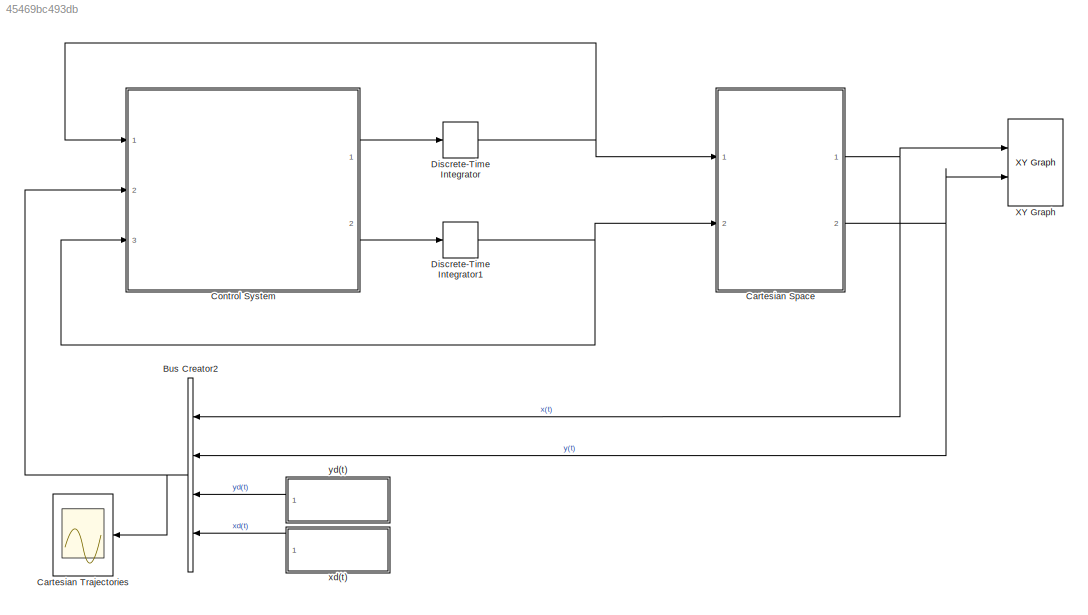
MODEL slx_45469bc493db
KIND model
CONFIG AbsTol = auto
CONFIG EnableMultiTasking = off
CONFIG FixedStep = 0.01
CONFIG MaxStep = auto
CONFIG MinStep = auto
CONFIG RelTol = 0.00001
CONFIG SampleTimeConstraint = Unconstrained
CONFIG Solver = FixedStepAuto
CONFIG SolverName = FixedStepAuto
CONFIG StartTime = 0.0
CONFIG StopTime = 10
WORKSPACE source: MAT-file member
WORKSPACE Kp_1 = 10000
WORKSPACE Kp_2 = 10000
WORKSPACE Kv_1 = 200
BLOCK [BusCreator] Bus Creator2
  DisplayOption = bar
  InheritFromInputs = on
  Inputs = 4
  Ports = [4, 1]
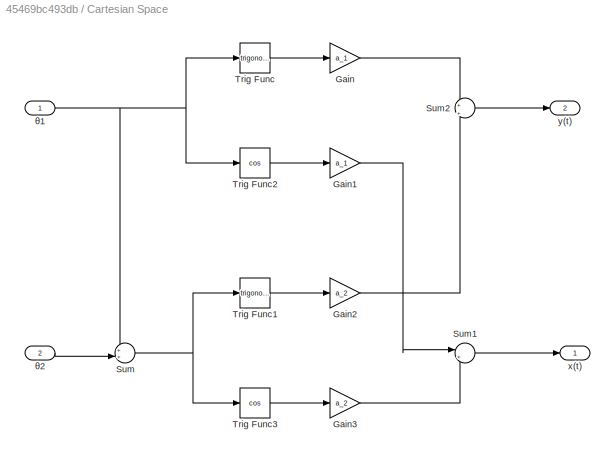
BLOCK [SubSystem] Cartesian Space 
  Ports = [2, 2]
  RequestExecContextInheritance = off
  TreatAsAtomicUnit = on
  Variant = off
BLOCK [Gain] Cartesian Space /Gain
  Gain = a_1
  OutDataTypeStr = Inherit: Inherit via internal rule
  ParamDataTypeStr = Inherit: Inherit via internal rule
  SaturateOnIntegerOverflow = off
BLOCK [Gain] Cartesian Space /Gain1
  Gain = a_1
  OutDataTypeStr = Inherit: Inherit via internal rule
  ParamDataTypeStr = Inherit: Inherit via internal rule
  SaturateOnIntegerOverflow = off
BLOCK [Gain] Cartesian Space /Gain2
  Gain = a_2
  OutDataTypeStr = Inherit: Inherit via internal rule
  ParamDataTypeStr = Inherit: Inherit via internal rule
  SaturateOnIntegerOverflow = off
BLOCK [Gain] Cartesian Space /Gain3
  Gain = a_2
  OutDataTypeStr = Inherit: Inherit via internal rule
  ParamDataTypeStr = Inherit: Inherit via internal rule
  SaturateOnIntegerOverflow = off
BLOCK [Sum] Cartesian Space /Sum
  IconShape = round
  InputSameDT = off
  Inputs = ++|
  OutDataTypeStr = Inherit: Inherit via internal rule
  Ports = [2, 1]
  SaturateOnIntegerOverflow = off
BLOCK [Sum] Cartesian Space /Sum1
  IconShape = round
  InputSameDT = off
  Inputs = |++
  OutDataTypeStr = Inherit: Inherit via internal rule
  Ports = [2, 1]
  SaturateOnIntegerOverflow = off
BLOCK [Sum] Cartesian Space /Sum2
  IconShape = round
  InputSameDT = off
  Inputs = +|+
  OutDataTypeStr = Inherit: Inherit via internal rule
  Ports = [2, 1]
  SaturateOnIntegerOverflow = off
BLOCK [Trigonometry] Cartesian Space /Trig Func
  Ports = [1, 1]
BLOCK [Trigonometry] Cartesian Space /Trig Func1
  Ports = [1, 1]
BLOCK [Trigonometry] Cartesian Space /Trig Func2
  Operator = cos
  Ports = [1, 1]
BLOCK [Trigonometry] Cartesian Space /Trig Func3
  Operator = cos
  Ports = [1, 1]
BLOCK [Outport] Cartesian Space /x(t)
  IconDisplay = Port number
BLOCK [Outport] Cartesian Space /y(t)
  IconDisplay = Port number
  Port = 2
BLOCK [Inport] Cartesian Space /θ1
  IconDisplay = Port number
BLOCK [Inport] Cartesian Space /θ2
  IconDisplay = Port number
  Port = 2
BLOCK [Scope] Cartesian Trajectories
  NumInputPorts = 1
  Ports = [1]
  ScopeSpecificationString = Simulink.scopes.TimeScopeBlockCfg('CurrentConfiguration', extmgr.ConfigurationSet(extmgr.Configuration('Core','General UI',true),extmgr.Configuration('Core','Source UI',true),extmgr.Configuration('Sources','WiredSimulink',true,'DataLoggingVariableName','ScopeData1'),extmgr.Configuration('Visuals','Time Domain',true,'SerializedDisplays',{struct('MinYLimReal','-0.25','MaxYLimReal','2.25','YLabelReal...<+1366ch>
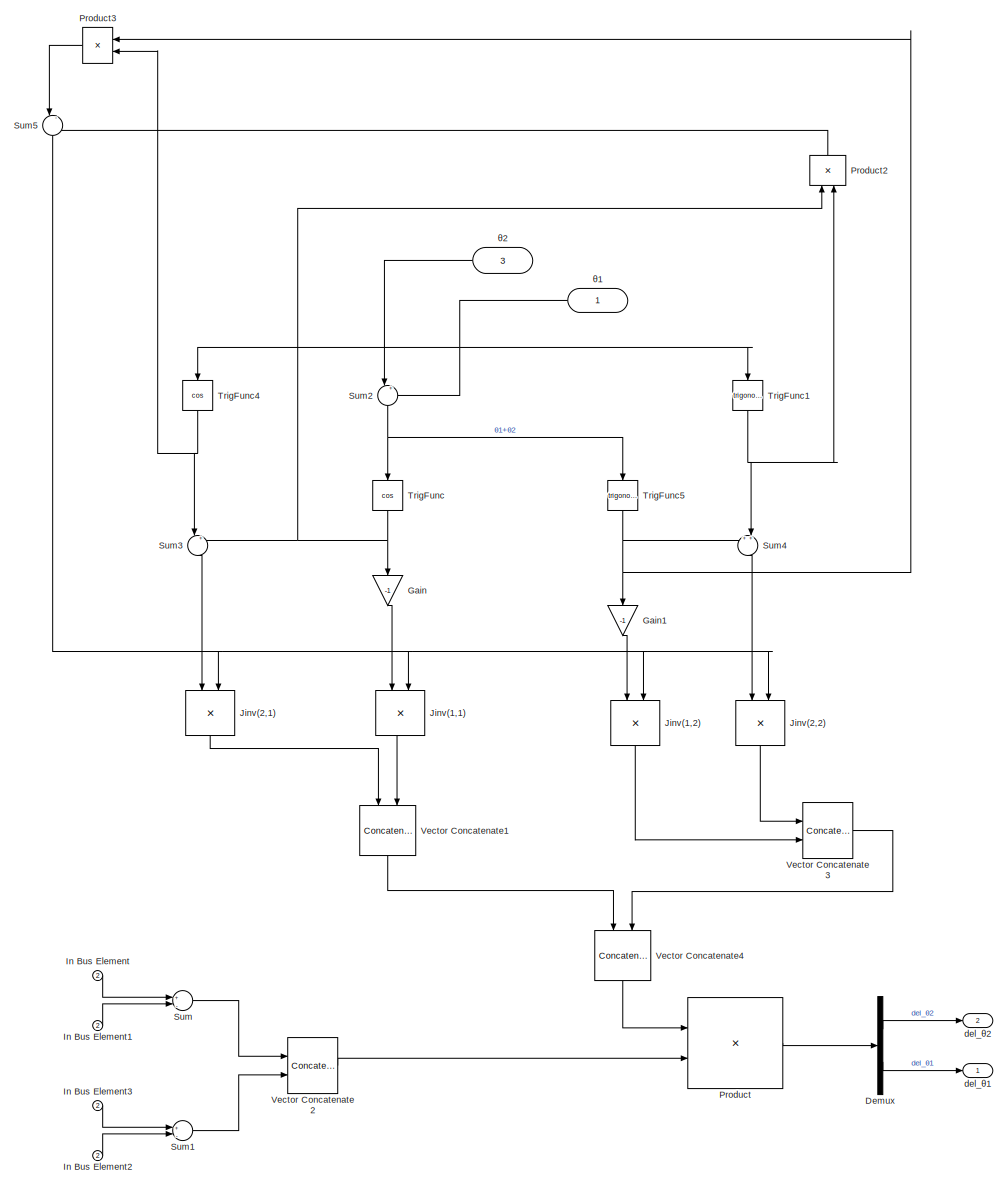
[diagram: Control System - part 1/1, most of the canvas]
BLOCK [SubSystem] Control System
  Ports = [3, 2]
  RequestExecContextInheritance = off
  TreatAsAtomicUnit = on
  Variant = off
BLOCK [Demux] Control System/Demux
  DisplayOption = bar
  Outputs = 2
  Ports = [1, 2]
BLOCK [Gain] Control System/Gain
  Gain = -1
  OutDataTypeStr = Inherit: Inherit via internal rule
  ParamDataTypeStr = Inherit: Inherit via internal rule
  SaturateOnIntegerOverflow = off
BLOCK [Gain] Control System/Gain1
  Gain = -1
  OutDataTypeStr = Inherit: Inherit via internal rule
  ParamDataTypeStr = Inherit: Inherit via internal rule
  SaturateOnIntegerOverflow = off
BLOCK [Inport] Control System/In Bus Element
  IconDisplay = Port number
  Port = 2
BLOCK [Inport] Control System/In Bus Element1
  IconDisplay = Port number
  Port = 2
BLOCK [Inport] Control System/In Bus Element2
  IconDisplay = Port number
  Port = 2
BLOCK [Inport] Control System/In Bus Element3
  IconDisplay = Port number
  Port = 2
BLOCK [Product] Control System/Jinv(1,1)
  InputSameDT = off
  Inputs = */
  OutDataTypeStr = Inherit: Inherit via internal rule
  Ports = [2, 1]
  RndMeth = Floor
  SaturateOnIntegerOverflow = off
BLOCK [Product] Control System/Jinv(1,2)
  InputSameDT = off
  Inputs = */
  OutDataTypeStr = Inherit: Inherit via internal rule
  Ports = [2, 1]
  RndMeth = Floor
  SaturateOnIntegerOverflow = off
BLOCK [Product] Control System/Jinv(2,1)
  InputSameDT = off
  Inputs = */
  OutDataTypeStr = Inherit: Inherit via internal rule
  Ports = [2, 1]
  RndMeth = Floor
  SaturateOnIntegerOverflow = off
BLOCK [Product] Control System/Jinv(2,2)
  InputSameDT = off
  Inputs = */
  OutDataTypeStr = Inherit: Inherit via internal rule
  Ports = [2, 1]
  RndMeth = Floor
  SaturateOnIntegerOverflow = off
BLOCK [Product] Control System/Product
  InputSameDT = off
  Multiplication = Matrix(*)
  OutDataTypeStr = Inherit: Inherit via internal rule
  Ports = [2, 1]
  RndMeth = Floor
  SaturateOnIntegerOverflow = off
BLOCK [Product] Control System/Product2
  InputSameDT = off
  OutDataTypeStr = Inherit: Inherit via internal rule
  Ports = [2, 1]
  RndMeth = Floor
  SaturateOnIntegerOverflow = off
BLOCK [Product] Control System/Product3
  InputSameDT = off
  OutDataTypeStr = Inherit: Inherit via internal rule
  Ports = [2, 1]
  RndMeth = Floor
  SaturateOnIntegerOverflow = off
BLOCK [Sum] Control System/Sum
  IconShape = round
  InputSameDT = off
  Inputs = +|-
  OutDataTypeStr = Inherit: Inherit via internal rule
  Ports = [2, 1]
  SaturateOnIntegerOverflow = off
BLOCK [Sum] Control System/Sum1
  IconShape = round
  InputSameDT = off
  Inputs = +|-
  OutDataTypeStr = Inherit: Inherit via internal rule
  Ports = [2, 1]
  SaturateOnIntegerOverflow = off
BLOCK [Sum] Control System/Sum2
  IconShape = round
  InputSameDT = off
  Inputs = |++
  OutDataTypeStr = Inherit: Inherit via internal rule
  Ports = [2, 1]
  SaturateOnIntegerOverflow = off
BLOCK [Sum] Control System/Sum3
  IconShape = round
  InputSameDT = off
  Inputs = |++
  OutDataTypeStr = Inherit: Inherit via internal rule
  Ports = [2, 1]
  SaturateOnIntegerOverflow = off
BLOCK [Sum] Control System/Sum4
  IconShape = round
  InputSameDT = off
  Inputs = ++|
  OutDataTypeStr = Inherit: Inherit via internal rule
  Ports = [2, 1]
  SaturateOnIntegerOverflow = off
BLOCK [Sum] Control System/Sum5
  IconShape = round
  InputSameDT = off
  Inputs = |-+
  OutDataTypeStr = Inherit: Inherit via internal rule
  Ports = [2, 1]
  SaturateOnIntegerOverflow = off
BLOCK [Trigonometry] Control System/TrigFunc
  Operator = cos
  Ports = [1, 1]
BLOCK [Trigonometry] Control System/TrigFunc1
  Ports = [1, 1]
BLOCK [Trigonometry] Control System/TrigFunc4
  Operator = cos
  Ports = [1, 1]
BLOCK [Trigonometry] Control System/TrigFunc5
  Ports = [1, 1]
BLOCK [Concatenate] Control System/Vector Concatenate1
  Mode = Multidimensional array
  Ports = [2, 1]
BLOCK [Concatenate] Control System/Vector Concatenate2
  Mode = Multidimensional array
  Ports = [2, 1]
BLOCK [Concatenate] Control System/Vector Concatenate3
  Mode = Multidimensional array
  Ports = [2, 1]
BLOCK [Concatenate] Control System/Vector Concatenate4
  ConcatenateDimension = 2
  Mode = Multidimensional array
  Ports = [2, 1]
BLOCK [Outport] Control System/del_θ1
  IconDisplay = Port number
BLOCK [Outport] Control System/del_θ2
  IconDisplay = Port number
  Port = 2
BLOCK [Inport] Control System/θ1
  IconDisplay = Port number
BLOCK [Inport] Control System/θ2
  IconDisplay = Port number
  Port = 3
BLOCK [DiscreteIntegrator] Discrete-Time Integrator
  ICPrevOutput = DiscIntNeverNeededParam
  ICPrevScaledInput = DiscIntNeverNeededParam
  InitialConditionSetting = State (most efficient)
  Ports = [1, 1]
  SampleTime = -1
  gainval = 1
BLOCK [DiscreteIntegrator] Discrete-Time Integrator1
  ICPrevOutput = DiscIntNeverNeededParam
  ICPrevScaledInput = DiscIntNeverNeededParam
  InitialConditionSetting = State (most efficient)
  Ports = [1, 1]
  SampleTime = -1
  gainval = 1
BLOCK [Reference] XY Graph  REF=simulink/Sinks/XY Graph
  Ports = [2]
  SourceBlock = simulink/Sinks/XY Graph
  SourceProductBaseCode = SL
  SourceProductName = Simulink
  SourceType = XY scope.
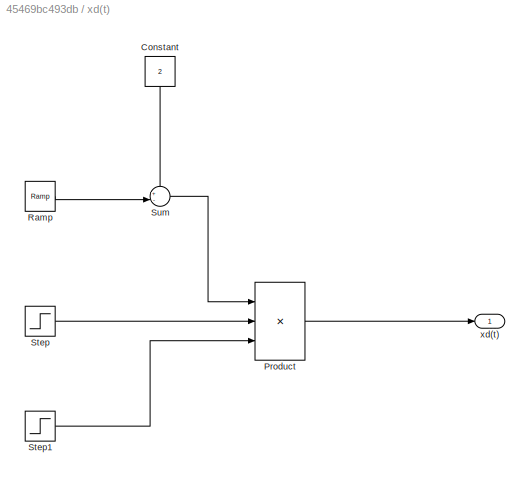
BLOCK [SubSystem] xd(t)
  Ports = [0, 1]
  RequestExecContextInheritance = off
  TreatAsAtomicUnit = on
  Variant = off
BLOCK [Constant] xd(t)/Constant
  Value = 2
BLOCK [Product] xd(t)/Product
  InputSameDT = off
  Inputs = 3
  OutDataTypeStr = Inherit: Inherit via internal rule
  Ports = [3, 1]
  RndMeth = Floor
  SaturateOnIntegerOverflow = off
BLOCK [Reference] xd(t)/Ramp  REF=simulink/Sources/Ramp
  Ports = [0, 1]
  SourceBlock = simulink/Sources/Ramp
  SourceProductBaseCode = SL
  SourceProductName = Simulink
  SourceType = Ramp
BLOCK [Step] xd(t)/Step
  SampleTime = 0
  Time = 0
BLOCK [Step] xd(t)/Step1
  After = 0
  Before = 1
  SampleTime = 0
  Time = 2
BLOCK [Sum] xd(t)/Sum
  IconShape = round
  InputSameDT = off
  Inputs = +-|
  OutDataTypeStr = Inherit: Inherit via internal rule
  Ports = [2, 1]
  SaturateOnIntegerOverflow = off
BLOCK [Outport] xd(t)/xd(t)
  IconDisplay = Port number
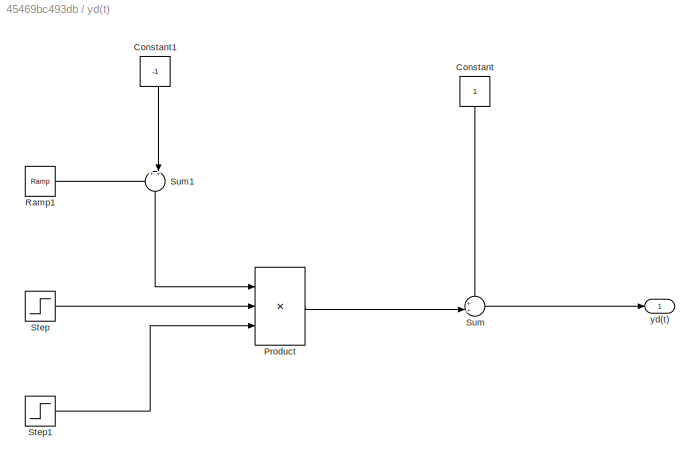
BLOCK [SubSystem] yd(t)
  Ports = [0, 1]
  RequestExecContextInheritance = off
  TreatAsAtomicUnit = on
  Variant = off
BLOCK [Constant] yd(t)/Constant
BLOCK [Constant] yd(t)/Constant1
  Value = -1
BLOCK [Product] yd(t)/Product
  InputSameDT = off
  Inputs = 3
  OutDataTypeStr = Inherit: Inherit via internal rule
  Ports = [3, 1]
  RndMeth = Floor
  SaturateOnIntegerOverflow = off
BLOCK [Reference] yd(t)/Ramp1  REF=simulink/Sources/Ramp
  Ports = [0, 1]
  SourceBlock = simulink/Sources/Ramp
  SourceProductBaseCode = SL
  SourceProductName = Simulink
  SourceType = Ramp
BLOCK [Step] yd(t)/Step
  SampleTime = 0
  Time = 0
BLOCK [Step] yd(t)/Step1
  After = 0
  Before = 1
  SampleTime = 0
  Time = 2
BLOCK [Sum] yd(t)/Sum
  IconShape = round
  InputSameDT = off
  Inputs = ++|
  OutDataTypeStr = Inherit: Inherit via internal rule
  Ports = [2, 1]
  SaturateOnIntegerOverflow = off
BLOCK [Sum] yd(t)/Sum1
  IconShape = round
  InputSameDT = off
  Inputs = ++|
  OutDataTypeStr = Inherit: Inherit via internal rule
  Ports = [2, 1]
  SaturateOnIntegerOverflow = off
BLOCK [Outport] yd(t)/yd(t)
  IconDisplay = Port number
NET Bus Creator2:1 -> Cartesian Trajectories:1, Control System:2
LINE Cartesian Space /Gain1:1 -> Cartesian Space /Sum1:1
LINE Cartesian Space /Gain2:1 -> Cartesian Space /Sum2:2
LINE Cartesian Space /Gain3:1 -> Cartesian Space /Sum1:2
LINE Cartesian Space /Gain:1 -> Cartesian Space /Sum2:1
LINE Cartesian Space /Sum1:1 -> Cartesian Space /x(t):1
LINE Cartesian Space /Sum2:1 -> Cartesian Space /y(t):1
NET Cartesian Space /Sum:1 -> Cartesian Space /Trig Func1:1, Cartesian Space /Trig Func3:1
LINE Cartesian Space /Trig Func1:1 -> Cartesian Space /Gain2:1
LINE Cartesian Space /Trig Func2:1 -> Cartesian Space /Gain1:1
LINE Cartesian Space /Trig Func3:1 -> Cartesian Space /Gain3:1
LINE Cartesian Space /Trig Func:1 -> Cartesian Space /Gain:1
NET Cartesian Space /θ1:1 -> Cartesian Space /Sum:1, Cartesian Space /Trig Func2:1, Cartesian Space /Trig Func:1
LINE Cartesian Space /θ2:1 -> Cartesian Space /Sum:2
NET Cartesian Space :1 -> Bus Creator2:1, XY Graph:1
NET Cartesian Space :2 -> Bus Creator2:2, XY Graph:2
LINE Control System/Demux:1 -> Control System/del_θ2:1
LINE Control System/Demux:2 -> Control System/del_θ1:1
LINE Control System/Gain1:1 -> Control System/Jinv(1,2):1
LINE Control System/Gain:1 -> Control System/Jinv(1,1):1
LINE Control System/In Bus Element1:1 -> Control System/Sum:2
LINE Control System/In Bus Element2:1 -> Control System/Sum1:2
LINE Control System/In Bus Element3:1 -> Control System/Sum1:1
LINE Control System/In Bus Element:1 -> Control System/Sum:1
LINE Control System/Jinv(1,1):1 -> Control System/Vector Concatenate1:2
LINE Control System/Jinv(1,2):1 -> Control System/Vector Concatenate3:2
LINE Control System/Jinv(2,1):1 -> Control System/Vector Concatenate1:1
LINE Control System/Jinv(2,2):1 -> Control System/Vector Concatenate3:1
LINE Control System/Product2:1 -> Control System/Sum5:2
LINE Control System/Product3:1 -> Control System/Sum5:1
LINE Control System/Product:1 -> Control System/Demux:1
LINE Control System/Sum1:1 -> Control System/Vector Concatenate2:2
NET Control System/Sum2:1 -> Control System/TrigFunc5:1, Control System/TrigFunc:1
LINE Control System/Sum3:1 -> Control System/Jinv(2,1):1
LINE Control System/Sum4:1 -> Control System/Jinv(2,2):1
NET Control System/Sum5:1 -> Control System/Jinv(1,1):2, Control System/Jinv(1,2):2, Control System/Jinv(2,1):2, Control System/Jinv(2,2):2
LINE Control System/Sum:1 -> Control System/Vector Concatenate2:1
NET Control System/TrigFunc1:1 -> Control System/Product2:2, Control System/Sum4:2
NET Control System/TrigFunc4:1 -> Control System/Product3:2, Control System/Sum3:1
NET Control System/TrigFunc5:1 -> Control System/Gain1:1, Control System/Product3:1, Control System/Sum4:1
NET Control System/TrigFunc:1 -> Control System/Gain:1, Control System/Product2:1, Control System/Sum3:2
LINE Control System/Vector Concatenate1:1 -> Control System/Vector Concatenate4:1
LINE Control System/Vector Concatenate2:1 -> Control System/Product:2
LINE Control System/Vector Concatenate3:1 -> Control System/Vector Concatenate4:2
LINE Control System/Vector Concatenate4:1 -> Control System/Product:1
NET Control System/θ1:1 -> Control System/Sum2:2, Control System/TrigFunc1:1, Control System/TrigFunc4:1
LINE Control System/θ2:1 -> Control System/Sum2:1
LINE Control System:1 -> Discrete-Time Integrator:1
LINE Control System:2 -> Discrete-Time Integrator1:1
NET Discrete-Time Integrator1:1 -> Cartesian Space :2, Control System:3
NET Discrete-Time Integrator:1 -> Cartesian Space :1, Control System:1
LINE xd(t)/Constant:1 -> xd(t)/Sum:1
LINE xd(t)/Product:1 -> xd(t)/xd(t):1
LINE xd(t)/Ramp:1 -> xd(t)/Sum:2
LINE xd(t)/Step1:1 -> xd(t)/Product:3
LINE xd(t)/Step:1 -> xd(t)/Product:2
LINE xd(t)/Sum:1 -> xd(t)/Product:1
LINE xd(t):1 -> Bus Creator2:4
LINE yd(t)/Constant1:1 -> yd(t)/Sum1:2
LINE yd(t)/Constant:1 -> yd(t)/Sum:1
LINE yd(t)/Product:1 -> yd(t)/Sum:2
LINE yd(t)/Ramp1:1 -> yd(t)/Sum1:1
LINE yd(t)/Step1:1 -> yd(t)/Product:3
LINE yd(t)/Step:1 -> yd(t)/Product:2
LINE yd(t)/Sum1:1 -> yd(t)/Product:1
LINE yd(t)/Sum:1 -> yd(t)/yd(t):1
LINE yd(t):1 -> Bus Creator2:3
note: NET lines group one-source signal fan-out (src -> all destinations, sorted); 1:1 wires keep LINE
